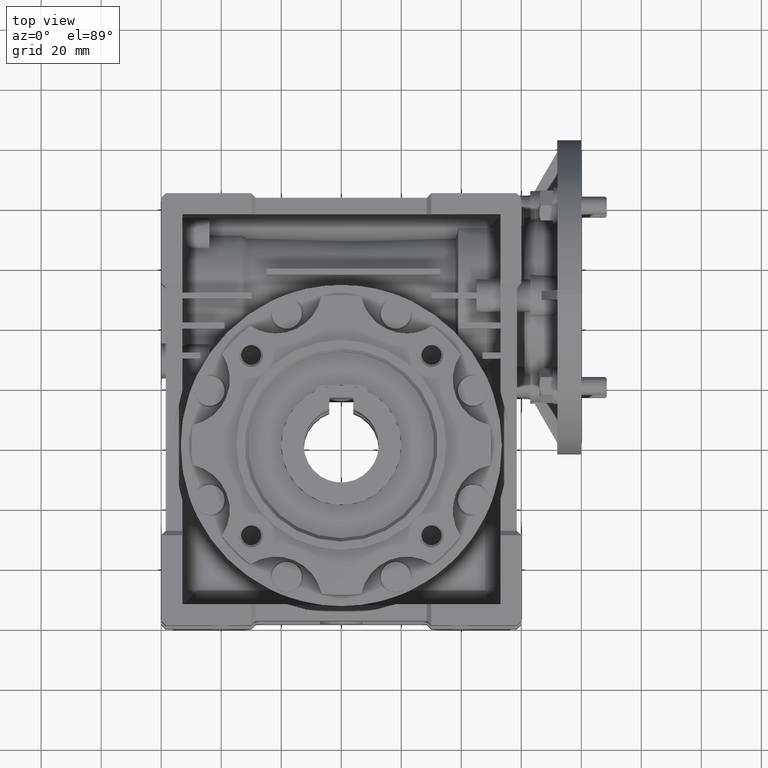
[diagram: clean part render]
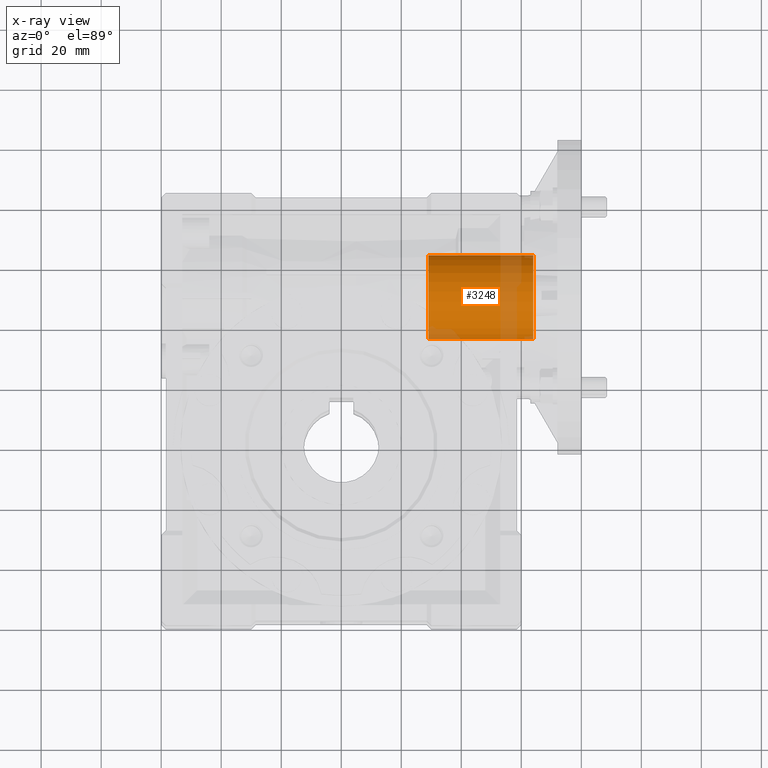
[diagram: x-ray — body ghosted, one internal face saturated and labeled with its STEP entity id]
A machine part, top view, then the same camera in x-ray: the body is ghosted and one INTERNAL B-rep face — a face not visible from any outside direction — is saturated and labeled: STEP entity #3248.
In plain terms, the highlighted cylindrical surface (partial cylindrical patch) has radius 14 mm, axis along (-1, 0, 0).
Its self-contained STEP definition (entity closure, byte-faithful):
#1156 = CARTESIAN_POINT ( 'NONE',  ( 29.00000000000000000, 50.00000000000000000, 0.000000000000000000 ) ) ;
#1173 = EDGE_CURVE ( 'NONE', #14149, #2002, #6184, .T. ) ;
#1293 = CARTESIAN_POINT ( 'NONE',  ( 79.00000000000000000, 64.00000000000000000, 0.000000000000000000 ) ) ;
#2002 = VERTEX_POINT ( 'NONE', #35062 ) ;
#3166 = VECTOR ( 'NONE', #3465, 1000.000000000000000 ) ;
#3248 = ADVANCED_FACE ( 'NONE', ( #34135 ), #25478, .F. ) ;
#3400 = CARTESIAN_POINT ( 'NONE',  ( 29.00000000000000000, 64.00000000000000000, 0.000000000000000000 ) ) ;
#3465 = DIRECTION ( 'NONE',  ( -1.000000000000000000, 0.000000000000000000, 0.000000000000000000 ) ) ;
#6184 = CIRCLE ( 'NONE', #24040, 13.99999999999999822 ) ;
#7227 = ORIENTED_EDGE ( 'NONE', *, *, #1173, .F. ) ;
#8160 = EDGE_CURVE ( 'NONE', #8688, #2002, #14451, .T. ) ;
#8688 = VERTEX_POINT ( 'NONE', #33116 ) ;
#9790 = DIRECTION ( 'NONE',  ( 1.000000000000000000, 0.000000000000000000, 0.000000000000000000 ) ) ;
#9902 = VERTEX_POINT ( 'NONE', #33040 ) ;
#10121 = ORIENTED_EDGE ( 'NONE', *, *, #34298, .F. ) ;
#10202 = DIRECTION ( 'NONE',  ( -1.000000000000000000, 0.000000000000000000, 0.000000000000000000 ) ) ;
#12133 = DIRECTION ( 'NONE',  ( 0.000000000000000000, 1.000000000000000000, 0.000000000000000000 ) ) ;
#12726 = AXIS2_PLACEMENT_3D ( 'NONE', #20451, #17911, #31621 ) ;
#14149 = VERTEX_POINT ( 'NONE', #3400 ) ;
#14451 = LINE ( 'NONE', #28167, #23427 ) ;
#17110 = EDGE_CURVE ( 'NONE', #9902, #14149, #20248, .T. ) ;
#17911 = DIRECTION ( 'NONE',  ( -1.000000000000000000, 0.000000000000000000, 0.000000000000000000 ) ) ;
#18018 = ORIENTED_EDGE ( 'NONE', *, *, #8160, .T. ) ;
#20248 = LINE ( 'NONE', #1293, #3166 ) ;
#20451 = CARTESIAN_POINT ( 'NONE',  ( 79.00000000000000000, 50.00000000000000000, 0.000000000000000000 ) ) ;
#21524 = ORIENTED_EDGE ( 'NONE', *, *, #17110, .F. ) ;
#21728 = CARTESIAN_POINT ( 'NONE',  ( 64.00000000000000000, 50.00000000000000000, 0.000000000000000000 ) ) ;
#23427 = VECTOR ( 'NONE', #31212, 1000.000000000000000 ) ;
#24040 = AXIS2_PLACEMENT_3D ( 'NONE', #1156, #9790, #12133 ) ;
#25000 = EDGE_LOOP ( 'NONE', ( #10121, #18018, #7227, #21524 ) ) ;
#25478 = CYLINDRICAL_SURFACE ( 'NONE', #12726, 13.99999999999999822 ) ;
#26580 = CIRCLE ( 'NONE', #26608, 13.99999999999999822 ) ;
#26608 = AXIS2_PLACEMENT_3D ( 'NONE', #21728, #10202, #32719 ) ;
#28167 = CARTESIAN_POINT ( 'NONE',  ( 79.00000000000000000, 36.00000000000000711, -1.714505518806294638E-15 ) ) ;
#31212 = DIRECTION ( 'NONE',  ( -1.000000000000000000, 0.000000000000000000, 0.000000000000000000 ) ) ;
#31621 = DIRECTION ( 'NONE',  ( 0.000000000000000000, 1.000000000000000000, 0.000000000000000000 ) ) ;
#32719 = DIRECTION ( 'NONE',  ( 0.000000000000000000, 1.000000000000000000, 0.000000000000000000 ) ) ;
#33040 = CARTESIAN_POINT ( 'NONE',  ( 64.00000000000000000, 64.00000000000000000, 0.000000000000000000 ) ) ;
#33116 = CARTESIAN_POINT ( 'NONE',  ( 64.00000000000000000, 36.00000000000000711, -1.714505518806294835E-15 ) ) ;
#34135 = FACE_OUTER_BOUND ( 'NONE', #25000, .T. ) ;
#34298 = EDGE_CURVE ( 'NONE', #8688, #9902, #26580, .T. ) ;
#35062 = CARTESIAN_POINT ( 'NONE',  ( 29.00000000000000000, 36.00000000000000711, -1.714505518806294835E-15 ) ) ;